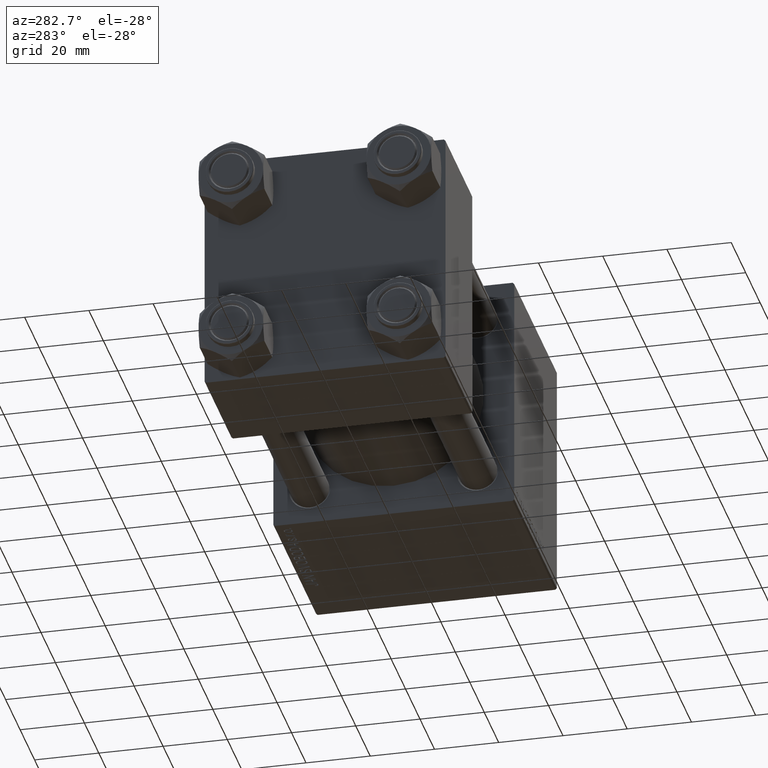
[diagram: clean part render]
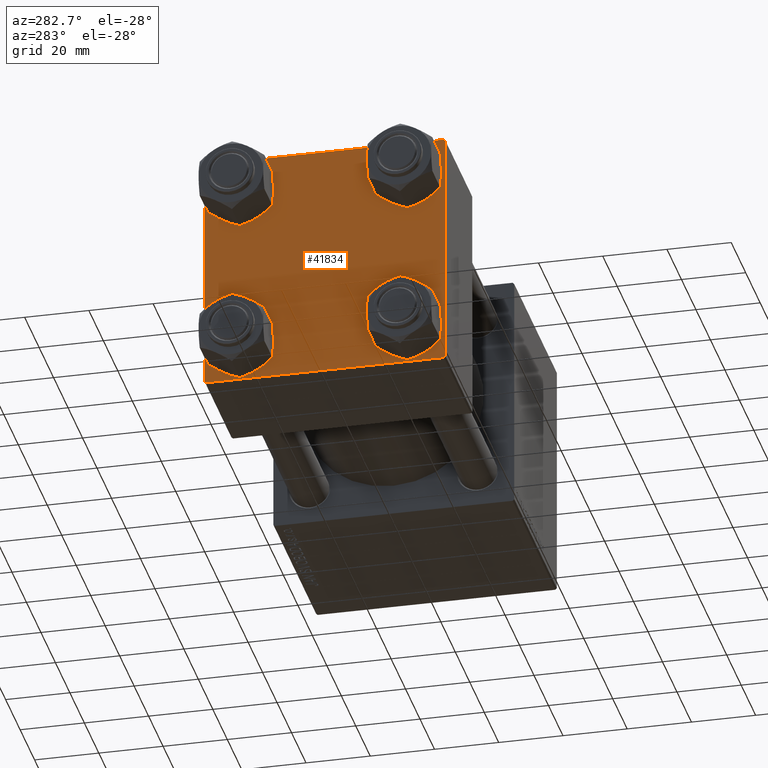
[diagram: same view with one face highlighted and labeled with its STEP entity id]
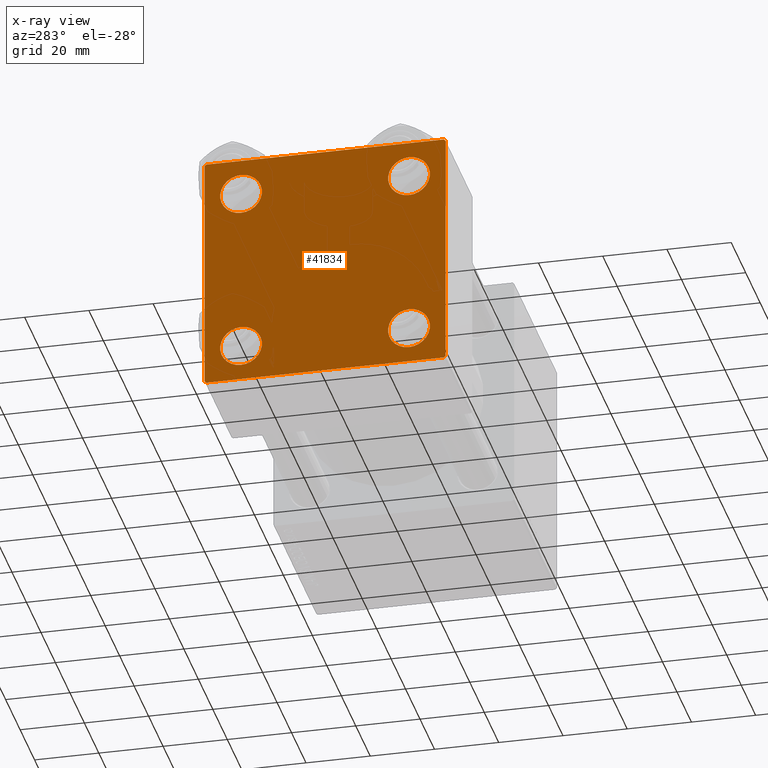
[diagram: x-ray of the same camera — body ghosted, the highlighted face saturated]
A machine part, auxiliary view. The second image highlights one B-rep face of the part: STEP entity #41834.
The next image is the same camera in x-ray: the body ghosted, the highlighted face saturated — about 0% of this face is hidden behind the body in this view.
In plain terms, the highlighted planar face has unit normal (-1, 0, 0).
Its self-contained STEP definition (entity closure, byte-faithful):
#204 = EDGE_LOOP ( 'NONE', ( #20584, #46318 ) ) ;
#463 = VERTEX_POINT ( 'NONE', #27174 ) ;
#577 = FACE_BOUND ( 'NONE', #14568, .T. ) ;
#1247 = EDGE_CURVE ( 'NONE', #17179, #49242, #20850, .T. ) ;
#3566 = DIRECTION ( 'NONE',  ( 0.000000000000000000, 0.000000000000000000, 1.000000000000000000 ) ) ;
#3901 = DIRECTION ( 'NONE',  ( -0.000000000000000000, 0.000000000000000000, 1.000000000000000000 ) ) ;
#4376 = DIRECTION ( 'NONE',  ( 0.000000000000000000, 0.000000000000000000, 1.000000000000000000 ) ) ;
#4484 = DIRECTION ( 'NONE',  ( 0.000000000000000000, 0.000000000000000000, -1.000000000000000000 ) ) ;
#5091 = VERTEX_POINT ( 'NONE', #47810 ) ;
#5223 = ORIENTED_EDGE ( 'NONE', *, *, #11272, .T. ) ;
#5366 = EDGE_CURVE ( 'NONE', #6023, #26577, #39640, .T. ) ;
#6023 = VERTEX_POINT ( 'NONE', #35718 ) ;
#6589 = ORIENTED_EDGE ( 'NONE', *, *, #5366, .T. ) ;
#6634 = EDGE_CURVE ( 'NONE', #5091, #29272, #29152, .T. ) ;
#7258 = VERTEX_POINT ( 'NONE', #33763 ) ;
#7875 = CIRCLE ( 'NONE', #50010, 6.500000000000015987 ) ;
#8300 = EDGE_CURVE ( 'NONE', #22785, #33043, #26410, .T. ) ;
#8417 = CIRCLE ( 'NONE', #23015, 6.500000000000023093 ) ;
#8485 = EDGE_CURVE ( 'NONE', #34165, #30836, #23273, .T. ) ;
#9422 = DIRECTION ( 'NONE',  ( -0.000000000000000000, 0.7071067811865474617, 0.7071067811865474617 ) ) ;
#9510 = AXIS2_PLACEMENT_3D ( 'NONE', #14011, #44985, #34052 ) ;
#9557 = EDGE_CURVE ( 'NONE', #32594, #30332, #28655, .T. ) ;
#10019 = DIRECTION ( 'NONE',  ( 0.000000000000000000, 0.000000000000000000, 1.000000000000000000 ) ) ;
#10315 = AXIS2_PLACEMENT_3D ( 'NONE', #50000, #23356, #3566 ) ;
#10585 = FACE_OUTER_BOUND ( 'NONE', #43832, .T. ) ;
#11211 = DIRECTION ( 'NONE',  ( 1.000000000000000000, -0.000000000000000000, 0.000000000000000000 ) ) ;
#11272 = EDGE_CURVE ( 'NONE', #37936, #463, #7875, .T. ) ;
#12361 = CARTESIAN_POINT ( 'NONE',  ( 0.000000000000000000, -37.50000000000000000, -37.00000000000003553 ) ) ;
#12389 = DIRECTION ( 'NONE',  ( 0.000000000000000000, 9.251858538542971581E-17, -1.000000000000000000 ) ) ;
#12491 = CARTESIAN_POINT ( 'NONE',  ( -0.000000000000000000, -37.25000000000000000, 37.25000000000000000 ) ) ;
#14011 = CARTESIAN_POINT ( 'NONE',  ( 0.000000000000000000, 26.14999999999999858, 26.15000000000000213 ) ) ;
#14352 = CARTESIAN_POINT ( 'NONE',  ( 0.000000000000000000, -26.14999999999999147, 32.65000000000003411 ) ) ;
#14568 = EDGE_LOOP ( 'NONE', ( #34628, #42006 ) ) ;
#14773 = EDGE_CURVE ( 'NONE', #463, #37936, #41116, .T. ) ;
#14901 = CARTESIAN_POINT ( 'NONE',  ( 0.000000000000000000, 37.24999999999999289, 37.24999999999999289 ) ) ;
#15671 = CARTESIAN_POINT ( 'NONE',  ( 0.000000000000000000, 36.99999999999999289, 37.50000000000000000 ) ) ;
#16069 = PLANE ( 'NONE',  #26779 ) ;
#16510 = EDGE_LOOP ( 'NONE', ( #21711, #40659 ) ) ;
#16686 = VECTOR ( 'NONE', #34955, 1000.000000000000114 ) ;
#17070 = LINE ( 'NONE', #44997, #24368 ) ;
#17130 = CIRCLE ( 'NONE', #30105, 6.500000000000023093 ) ;
#17179 = VERTEX_POINT ( 'NONE', #41736 ) ;
#17623 = CARTESIAN_POINT ( 'NONE',  ( 0.000000000000000000, 26.14999999999999858, -26.15000000000000213 ) ) ;
#17974 = CARTESIAN_POINT ( 'NONE',  ( 0.000000000000000000, -26.14999999999999147, -32.65000000000002700 ) ) ;
#18276 = ORIENTED_EDGE ( 'NONE', *, *, #9557, .T. ) ;
#19619 = DIRECTION ( 'NONE',  ( 0.000000000000000000, -1.000000000000000000, -9.251858538542972814E-17 ) ) ;
#20495 = LINE ( 'NONE', #27876, #39766 ) ;
#20584 = ORIENTED_EDGE ( 'NONE', *, *, #43732, .T. ) ;
#20850 = CIRCLE ( 'NONE', #9510, 6.500000000000023093 ) ;
#21711 = ORIENTED_EDGE ( 'NONE', *, *, #8300, .T. ) ;
#22013 = DIRECTION ( 'NONE',  ( -1.000000000000000000, 0.000000000000000000, -0.000000000000000000 ) ) ;
#22131 = ORIENTED_EDGE ( 'NONE', *, *, #8485, .T. ) ;
#22785 = VERTEX_POINT ( 'NONE', #40674 ) ;
#23015 = AXIS2_PLACEMENT_3D ( 'NONE', #40579, #40323, #36272 ) ;
#23273 = LINE ( 'NONE', #14901, #16686 ) ;
#23356 = DIRECTION ( 'NONE',  ( 1.000000000000000000, -0.000000000000000000, 0.000000000000000000 ) ) ;
#23777 = LINE ( 'NONE', #36457, #38305 ) ;
#24057 = EDGE_CURVE ( 'NONE', #6023, #30332, #20495, .T. ) ;
#24368 = VECTOR ( 'NONE', #33059, 1000.000000000000000 ) ;
#24575 = EDGE_CURVE ( 'NONE', #34165, #26577, #17070, .T. ) ;
#26346 = CARTESIAN_POINT ( 'NONE',  ( 0.000000000000000000, -37.24999999999975842, -37.25000000000027001 ) ) ;
#26361 = DIRECTION ( 'NONE',  ( 0.000000000000000000, 0.000000000000000000, 1.000000000000000000 ) ) ;
#26410 = CIRCLE ( 'NONE', #34525, 6.500000000000015987 ) ;
#26577 = VERTEX_POINT ( 'NONE', #41212 ) ;
#26684 = VECTOR ( 'NONE', #9422, 1000.000000000000114 ) ;
#26779 = AXIS2_PLACEMENT_3D ( 'NONE', #47038, #22013, #3901 ) ;
#27025 = CARTESIAN_POINT ( 'NONE',  ( 0.000000000000000000, -26.14999999999999147, -26.15000000000000924 ) ) ;
#27174 = CARTESIAN_POINT ( 'NONE',  ( 0.000000000000000000, 26.14999999999999858, -32.65000000000001990 ) ) ;
#27355 = CARTESIAN_POINT ( 'NONE',  ( 0.000000000000000000, -26.14999999999999147, 26.15000000000000924 ) ) ;
#27876 = CARTESIAN_POINT ( 'NONE',  ( 0.000000000000000000, -37.50000000000000711, 37.49999999999999289 ) ) ;
#28057 = VERTEX_POINT ( 'NONE', #34665 ) ;
#28208 = EDGE_CURVE ( 'NONE', #28057, #32594, #30797, .T. ) ;
#28655 = LINE ( 'NONE', #26346, #42678 ) ;
#29060 = DIRECTION ( 'NONE',  ( 1.000000000000000000, -0.000000000000000000, 0.000000000000000000 ) ) ;
#29152 = CIRCLE ( 'NONE', #30786, 6.500000000000023093 ) ;
#29272 = VERTEX_POINT ( 'NONE', #14352 ) ;
#30105 = AXIS2_PLACEMENT_3D ( 'NONE', #43711, #39152, #4376 ) ;
#30332 = VERTEX_POINT ( 'NONE', #12361 ) ;
#30508 = CARTESIAN_POINT ( 'NONE',  ( 0.000000000000000000, -26.14999999999999147, -26.15000000000000924 ) ) ;
#30786 = AXIS2_PLACEMENT_3D ( 'NONE', #27355, #31172, #26361 ) ;
#30797 = LINE ( 'NONE', #38406, #31798 ) ;
#30836 = VERTEX_POINT ( 'NONE', #49686 ) ;
#30923 = CARTESIAN_POINT ( 'NONE',  ( 0.000000000000000000, 26.14999999999999858, -19.64999999999998792 ) ) ;
#31172 = DIRECTION ( 'NONE',  ( 1.000000000000000000, -0.000000000000000000, 0.000000000000000000 ) ) ;
#31577 = DIRECTION ( 'NONE',  ( 0.000000000000000000, 0.000000000000000000, 1.000000000000000000 ) ) ;
#31798 = VECTOR ( 'NONE', #19619, 1000.000000000000000 ) ;
#31920 = EDGE_LOOP ( 'NONE', ( #5223, #38999 ) ) ;
#32029 = EDGE_CURVE ( 'NONE', #7258, #28057, #48677, .T. ) ;
#32091 = EDGE_CURVE ( 'NONE', #33043, #22785, #47978, .T. ) ;
#32594 = VERTEX_POINT ( 'NONE', #39629 ) ;
#32699 = DIRECTION ( 'NONE',  ( -0.000000000000000000, -0.7071067811865474617, -0.7071067811865474617 ) ) ;
#33043 = VERTEX_POINT ( 'NONE', #17974 ) ;
#33059 = DIRECTION ( 'NONE',  ( 0.000000000000000000, -1.000000000000000000, -9.251858538542971581E-17 ) ) ;
#33231 = EDGE_CURVE ( 'NONE', #30836, #7258, #23777, .T. ) ;
#33692 = FACE_BOUND ( 'NONE', #31920, .T. ) ;
#33763 = CARTESIAN_POINT ( 'NONE',  ( 0.000000000000000000, 37.49999999999999289, -36.99999999999998579 ) ) ;
#34052 = DIRECTION ( 'NONE',  ( 0.000000000000000000, 0.000000000000000000, 1.000000000000000000 ) ) ;
#34165 = VERTEX_POINT ( 'NONE', #15671 ) ;
#34525 = AXIS2_PLACEMENT_3D ( 'NONE', #30508, #11211, #41452 ) ;
#34628 = ORIENTED_EDGE ( 'NONE', *, *, #1247, .T. ) ;
#34665 = CARTESIAN_POINT ( 'NONE',  ( 0.000000000000000000, 36.99999999999997868, -37.50000000000000000 ) ) ;
#34955 = DIRECTION ( 'NONE',  ( 0.000000000000000000, 0.7071067811865474617, -0.7071067811865474617 ) ) ;
#35718 = CARTESIAN_POINT ( 'NONE',  ( 0.000000000000000000, -37.50000000000000711, 36.99999999999999289 ) ) ;
#36272 = DIRECTION ( 'NONE',  ( 0.000000000000000000, 0.000000000000000000, 1.000000000000000000 ) ) ;
#36334 = EDGE_CURVE ( 'NONE', #49242, #17179, #8417, .T. ) ;
#36457 = CARTESIAN_POINT ( 'NONE',  ( 0.000000000000000000, 37.49999999999999289, 37.50000000000000000 ) ) ;
#37693 = ORIENTED_EDGE ( 'NONE', *, *, #32029, .T. ) ;
#37936 = VERTEX_POINT ( 'NONE', #30923 ) ;
#38305 = VECTOR ( 'NONE', #4484, 1000.000000000000000 ) ;
#38406 = CARTESIAN_POINT ( 'NONE',  ( 0.000000000000000000, 37.49999999999999289, -37.50000000000000000 ) ) ;
#38999 = ORIENTED_EDGE ( 'NONE', *, *, #14773, .T. ) ;
#39068 = VECTOR ( 'NONE', #32699, 1000.000000000000114 ) ;
#39152 = DIRECTION ( 'NONE',  ( 1.000000000000000000, -0.000000000000000000, 0.000000000000000000 ) ) ;
#39629 = CARTESIAN_POINT ( 'NONE',  ( 0.000000000000000000, -37.00000000000002132, -37.50000000000000711 ) ) ;
#39640 = LINE ( 'NONE', #12491, #26684 ) ;
#39766 = VECTOR ( 'NONE', #12389, 1000.000000000000000 ) ;
#39871 = AXIS2_PLACEMENT_3D ( 'NONE', #27025, #46808, #31577 ) ;
#40323 = DIRECTION ( 'NONE',  ( 1.000000000000000000, -0.000000000000000000, 0.000000000000000000 ) ) ;
#40579 = CARTESIAN_POINT ( 'NONE',  ( 0.000000000000000000, 26.14999999999999858, 26.15000000000000213 ) ) ;
#40659 = ORIENTED_EDGE ( 'NONE', *, *, #32091, .T. ) ;
#40674 = CARTESIAN_POINT ( 'NONE',  ( 0.000000000000000000, -26.14999999999999147, -19.64999999999999503 ) ) ;
#41116 = CIRCLE ( 'NONE', #10315, 6.500000000000015987 ) ;
#41212 = CARTESIAN_POINT ( 'NONE',  ( 0.000000000000000000, -37.00000000000000711, 37.49999999999999289 ) ) ;
#41452 = DIRECTION ( 'NONE',  ( 0.000000000000000000, 0.000000000000000000, 1.000000000000000000 ) ) ;
#41555 = FACE_BOUND ( 'NONE', #204, .T. ) ;
#41736 = CARTESIAN_POINT ( 'NONE',  ( 0.000000000000000000, 26.14999999999999858, 32.65000000000002700 ) ) ;
#41834 = ADVANCED_FACE ( 'NONE', ( #41555, #46785, #33692, #577, #10585 ), #16069, .T. ) ;
#42006 = ORIENTED_EDGE ( 'NONE', *, *, #36334, .T. ) ;
#42678 = VECTOR ( 'NONE', #45634, 1000.000000000000000 ) ;
#43711 = CARTESIAN_POINT ( 'NONE',  ( 0.000000000000000000, -26.14999999999999147, 26.15000000000000924 ) ) ;
#43732 = EDGE_CURVE ( 'NONE', #29272, #5091, #17130, .T. ) ;
#43832 = EDGE_LOOP ( 'NONE', ( #44539, #37693, #46008, #18276, #47510, #6589, #48481, #22131 ) ) ;
#44539 = ORIENTED_EDGE ( 'NONE', *, *, #33231, .T. ) ;
#44985 = DIRECTION ( 'NONE',  ( 1.000000000000000000, -0.000000000000000000, 0.000000000000000000 ) ) ;
#44997 = CARTESIAN_POINT ( 'NONE',  ( 0.000000000000000000, 37.49999999999999289, 37.50000000000000000 ) ) ;
#45634 = DIRECTION ( 'NONE',  ( 0.000000000000000000, -0.7071067811865524577, 0.7071067811865426878 ) ) ;
#46008 = ORIENTED_EDGE ( 'NONE', *, *, #28208, .T. ) ;
#46318 = ORIENTED_EDGE ( 'NONE', *, *, #6634, .T. ) ;
#46785 = FACE_BOUND ( 'NONE', #16510, .T. ) ;
#46808 = DIRECTION ( 'NONE',  ( 1.000000000000000000, -0.000000000000000000, 0.000000000000000000 ) ) ;
#47038 = CARTESIAN_POINT ( 'NONE',  ( 0.000000000000000000, 0.000000000000000000, 0.000000000000000000 ) ) ;
#47510 = ORIENTED_EDGE ( 'NONE', *, *, #24057, .F. ) ;
#47810 = CARTESIAN_POINT ( 'NONE',  ( 0.000000000000000000, -26.14999999999999147, 19.64999999999999147 ) ) ;
#47978 = CIRCLE ( 'NONE', #39871, 6.500000000000015987 ) ;
#48481 = ORIENTED_EDGE ( 'NONE', *, *, #24575, .F. ) ;
#48677 = LINE ( 'NONE', #49854, #39068 ) ;
#48735 = CARTESIAN_POINT ( 'NONE',  ( 0.000000000000000000, 26.14999999999999858, 19.64999999999998437 ) ) ;
#49242 = VERTEX_POINT ( 'NONE', #48735 ) ;
#49686 = CARTESIAN_POINT ( 'NONE',  ( 0.000000000000000000, 37.49999999999999289, 37.00000000000000000 ) ) ;
#49854 = CARTESIAN_POINT ( 'NONE',  ( 0.000000000000000000, 37.24999999999998579, -37.24999999999998579 ) ) ;
#50000 = CARTESIAN_POINT ( 'NONE',  ( 0.000000000000000000, 26.14999999999999858, -26.15000000000000213 ) ) ;
#50010 = AXIS2_PLACEMENT_3D ( 'NONE', #17623, #29060, #10019 ) ;